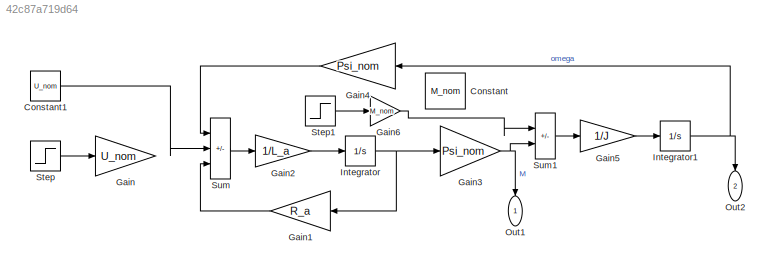
MODEL slx_42c87a719d64
KIND model
CONFIG AbsTol = auto
CONFIG EnableMultiTasking = off
CONFIG FixedStep = auto
CONFIG MaxStep = 2e-5
CONFIG MinStep = auto
CONFIG RelTol = 1e-3
CONFIG SampleTimeConstraint = Unconstrained
CONFIG SolverName = ode23t
CONFIG StartTime = 0.0
CONFIG StopTime = 2
BLOCK [Constant] Constant
  Value = M_nom
BLOCK [Constant] Constant1
  Value = U_nom
BLOCK [Gain] Gain
  Gain = U_nom
BLOCK [Gain] Gain1
  Gain = R_a
  NameLocation = top
BLOCK [Gain] Gain2
  Gain = 1/L_a
BLOCK [Gain] Gain3
  Gain = Psi_nom
BLOCK [Gain] Gain4
  Gain = Psi_nom
  NameLocation = top
BLOCK [Gain] Gain5
  Gain = 1/J
BLOCK [Gain] Gain6
  Gain = M_nom
BLOCK [Integrator] Integrator
BLOCK [Integrator] Integrator1
BLOCK [Outport] Out1
  NameLocation = left
BLOCK [Outport] Out2
  NameLocation = left
  Port = 2
BLOCK [Step] Step
  Before = 0.5
  SampleTime = 0
BLOCK [Step] Step1
  Before = 0.5
  SampleTime = 0
BLOCK [Sum] Sum
  IconShape = rectangular
  Inputs = |-+-
BLOCK [Sum] Sum1
  IconShape = rectangular
  Inputs = |-+
LINE Constant1:1 -> Sum:2
LINE Gain1:1 -> Sum:3
LINE Gain2:1 -> Integrator:1
NET Gain3:1 -> Out1:1, Sum1:2
LINE Gain4:1 -> Sum:1
LINE Gain5:1 -> Integrator1:1
LINE Gain6:1 -> Sum1:1
NET Integrator1:1 -> Gain4:1, Out2:1
NET Integrator:1 -> Gain1:1, Gain3:1
LINE Step1:1 -> Gain6:1
LINE Step:1 -> Gain:1
LINE Sum1:1 -> Gain5:1
LINE Sum:1 -> Gain2:1
note: NET lines group one-source signal fan-out (src -> all destinations, sorted); 1:1 wires keep LINE
